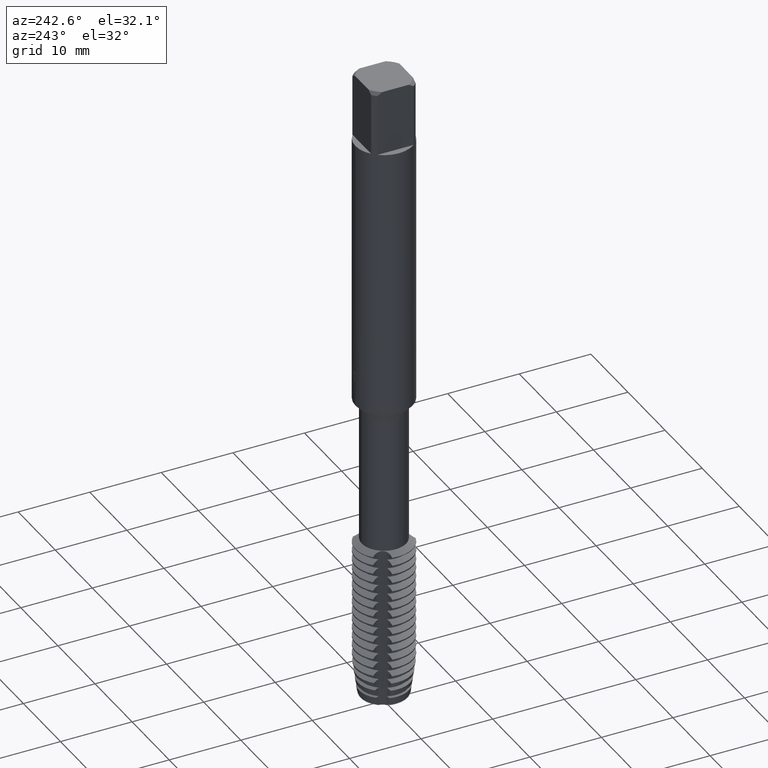
[diagram: clean part render]
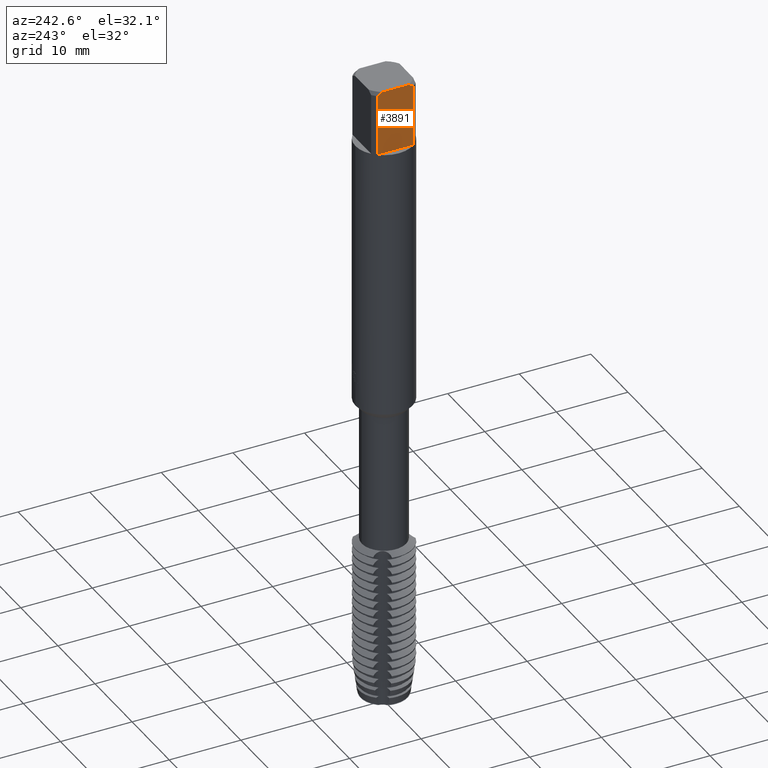
[diagram: same view with one face highlighted and labeled with its STEP entity id]
A machine part, auxiliary view. The second image highlights one B-rep face of the part: STEP entity #3891.
In plain terms, the highlighted planar face has unit normal (-1, 0, 0).
Its self-contained STEP definition (entity closure, byte-faithful):
#2873=VERTEX_POINT('',#7407);
#3121=EDGE_CURVE('',#4557,#3605,#7682,.T.);
#3133=EDGE_CURVE('',#3605,#2873,#7694,.T.);
#3605=VERTEX_POINT('',#8205);
#3613=EDGE_CURVE('',#5991,#6147,#8214,.T.);
#3691=EDGE_CURVE('',#6147,#4557,#8296,.T.);
#3891=ADVANCED_FACE('',(#8513),#8514,.T.);
#4557=VERTEX_POINT('',#9246);
#4829=VERTEX_POINT('',#9531);
#5851=EDGE_CURVE('',#4829,#5991,#10651,.T.);
#5863=EDGE_CURVE('',#2873,#4829,#10663,.T.);
#5991=VERTEX_POINT('',#10800);
#6147=VERTEX_POINT('',#10970);
#7407=CARTESIAN_POINT('',(-3.1,-2.52784493195291,-0.399999999999999));
#7682=LINE('',#13258,#13259);
#7694=(B_SPLINE_CURVE(2,(#13283,#13284,#13285),.UNSPECIFIED.,.F.,.F.)B_SPLINE_CURVE_WITH_KNOTS((3,3),(0.0,0.804311875650058),.UNSPECIFIED.)RATIONAL_B_SPLINE_CURVE((1.0,1.0042387817675,1.0))BOUNDED_CURVE()REPRESENTATION_ITEM('')GEOMETRIC_REPRESENTATION_ITEM()CURVE());
#8205=CARTESIAN_POINT('',(-3.1,-1.83030052177231,0.0));
#8214=LINE('',#14202,#14203);
#8296=(B_SPLINE_CURVE(2,(#14340,#14341,#14342),.UNSPECIFIED.,.F.,.F.)B_SPLINE_CURVE_WITH_KNOTS((3,3),(0.0,0.804311875650058),.UNSPECIFIED.)RATIONAL_B_SPLINE_CURVE((1.0,1.0042387817675,1.0))BOUNDED_CURVE()REPRESENTATION_ITEM('')GEOMETRIC_REPRESENTATION_ITEM()CURVE());
#8513=FACE_OUTER_BOUND('',#14773,.T.);
#8514=PLANE('',#14774);
#9246=CARTESIAN_POINT('',(-3.1,1.83030052177231,0.0));
#9531=CARTESIAN_POINT('',(-3.1,-2.52784493195291,-9.0));
#10651=LINE('',#18553,#18554);
#10663=LINE('',#18603,#18604);
#10800=CARTESIAN_POINT('',(-3.1,2.52784493195291,-9.0));
#10970=CARTESIAN_POINT('',(-3.1,2.52784493195291,-0.399999999999999));
#13258=CARTESIAN_POINT('',(-3.1,0.9,0.0));
#13259=VECTOR('',#21421,1.0);
#13283=CARTESIAN_POINT('',(-3.1,-1.83030052177232,0.0));
#13284=CARTESIAN_POINT('',(-3.1,-2.16071629501576,-0.167988933935908));
#13285=CARTESIAN_POINT('',(-3.1,-2.52784493195291,-0.399999999999999));
#14202=CARTESIAN_POINT('',(-3.1,2.52784493195291,-4.7));
#14203=VECTOR('',#21952,1.0);
#14340=CARTESIAN_POINT('',(-3.1,2.52784493195291,-0.399999999999999));
#14341=CARTESIAN_POINT('',(-3.1,2.16071629501576,-0.167988933935908));
#14342=CARTESIAN_POINT('',(-3.1,1.83030052177232,0.0));
#14773=EDGE_LOOP('',(#22236,#22237,#22238,#22239,#22240,#22241));
#14774=AXIS2_PLACEMENT_3D('',#22242,#22243,#22244);
#18553=CARTESIAN_POINT('',(-3.1,0.0,-9.0));
#18554=VECTOR('',#24609,1.0);
#18603=CARTESIAN_POINT('',(-3.1,-2.52784493195291,-4.7));
#18604=VECTOR('',#24616,1.0);
#21421=DIRECTION('',(-0.0,-1.0,0.0));
#21952=DIRECTION('',(-0.0,-0.0,1.0));
#22236=ORIENTED_EDGE('',*,*,#3613,.F.);
#22237=ORIENTED_EDGE('',*,*,#5851,.F.);
#22238=ORIENTED_EDGE('',*,*,#5863,.F.);
#22239=ORIENTED_EDGE('',*,*,#3133,.F.);
#22240=ORIENTED_EDGE('',*,*,#3121,.F.);
#22241=ORIENTED_EDGE('',*,*,#3691,.F.);
#22242=CARTESIAN_POINT('',(-3.1,0.0,-4.0));
#22243=DIRECTION('',(-1.0,0.0,0.0));
#22244=DIRECTION('',(0.0,0.0,-1.0));
#24609=DIRECTION('',(0.0,1.0,0.0));
#24616=DIRECTION('',(0.0,0.0,-1.0));